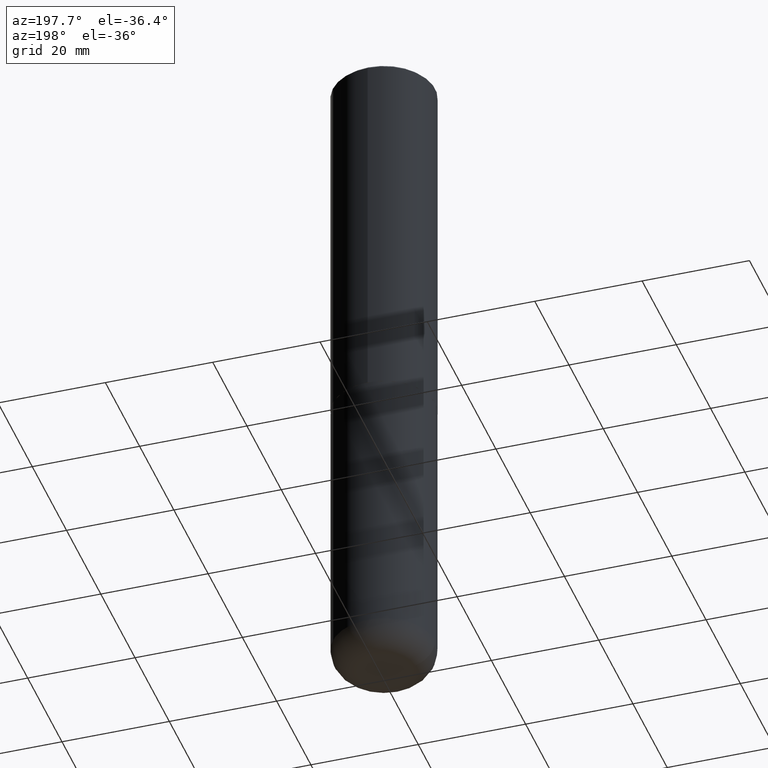
[diagram: clean part render]
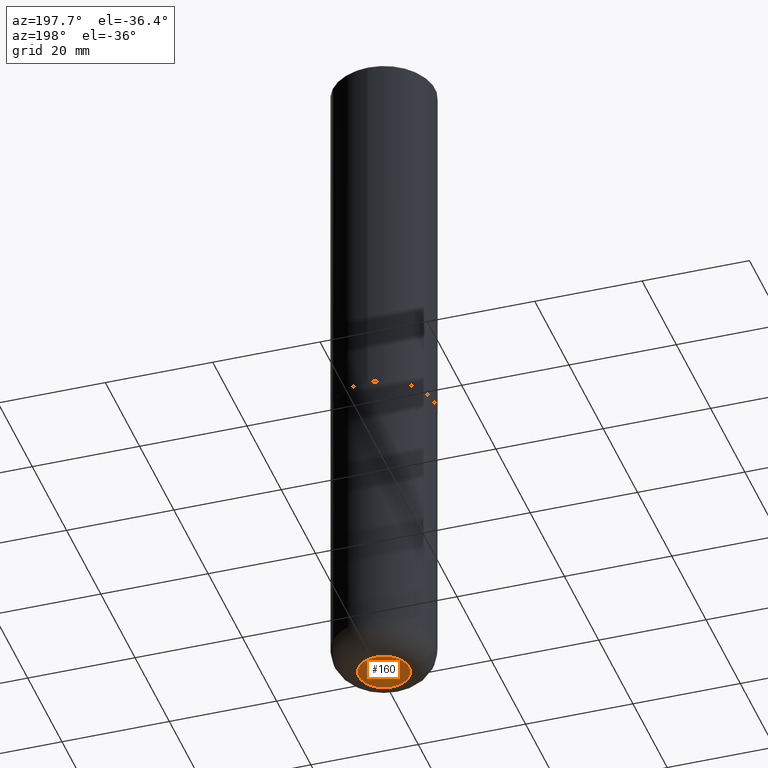
[diagram: same view with one face highlighted and labeled with its STEP entity id]
A machine part, auxiliary view. The second image highlights one B-rep face of the part: STEP entity #160.
In plain terms, the highlighted planar face has unit normal (0, -0, -1).
Its self-contained STEP definition (entity closure, byte-faithful):
#31 = DIRECTION ( 'NONE',  ( 1.000000000000000000, -6.982962677686272233E-15, 0.000000000000000000 ) ) ;
#41 = DIRECTION ( 'NONE',  ( 1.000000000000000000, -6.982962677686272233E-15, 0.000000000000000000 ) ) ;
#49 = VERTEX_POINT ( 'NONE', #403 ) ;
#65 = EDGE_CURVE ( 'NONE', #49, #208, #385, .T. ) ;
#149 = AXIS2_PLACEMENT_3D ( 'NONE', #350, #259, #291 ) ;
#160 = ADVANCED_FACE ( 'NONE', ( #288 ), #408, .T. ) ;
#163 = AXIS2_PLACEMENT_3D ( 'NONE', #238, #335, #41 ) ;
#171 = ORIENTED_EDGE ( 'NONE', *, *, #65, .F. ) ;
#195 = CARTESIAN_POINT ( 'NONE',  ( 1.222734403092568523E-28, -1.745740669421572989E-14, -5.000000000000000000 ) ) ;
#200 = DIRECTION ( 'NONE',  ( -2.445468806185136597E-29, 3.491481338843145583E-15, 1.000000000000000000 ) ) ;
#208 = VERTEX_POINT ( 'NONE', #235 ) ;
#214 = EDGE_CURVE ( 'NONE', #208, #49, #283, .T. ) ;
#235 = CARTESIAN_POINT ( 'NONE',  ( 0.1850000000000000810, -1.874925478958768986E-14, -5.000000000000000000 ) ) ;
#238 = CARTESIAN_POINT ( 'NONE',  ( 1.222734403092568523E-28, -1.745740669421572989E-14, -5.000000000000000000 ) ) ;
#259 = DIRECTION ( 'NONE',  ( 2.438088387897960049E-29, -3.491481338843145188E-15, -1.000000000000000000 ) ) ;
#274 = AXIS2_PLACEMENT_3D ( 'NONE', #195, #200, #31 ) ;
#283 = CIRCLE ( 'NONE', #163, 0.1850000000000000810 ) ;
#288 = FACE_OUTER_BOUND ( 'NONE', #394, .T. ) ;
#291 = DIRECTION ( 'NONE',  ( -1.000000000000000000, 6.982962677686265922E-15, -4.876176775795935793E-29 ) ) ;
#333 = ORIENTED_EDGE ( 'NONE', *, *, #214, .F. ) ;
#335 = DIRECTION ( 'NONE',  ( -2.445468806185136597E-29, 3.491481338843145583E-15, 1.000000000000000000 ) ) ;
#350 = CARTESIAN_POINT ( 'NONE',  ( 1.222734403092568523E-28, -1.745740669421572989E-14, -5.000000000000000000 ) ) ;
#385 = CIRCLE ( 'NONE', #274, 0.1850000000000000810 ) ;
#394 = EDGE_LOOP ( 'NONE', ( #333, #171 ) ) ;
#403 = CARTESIAN_POINT ( 'NONE',  ( -0.1850000000000000810, -1.513619630689734772E-14, -5.000000000000000000 ) ) ;
#408 = PLANE ( 'NONE',  #149 ) ;